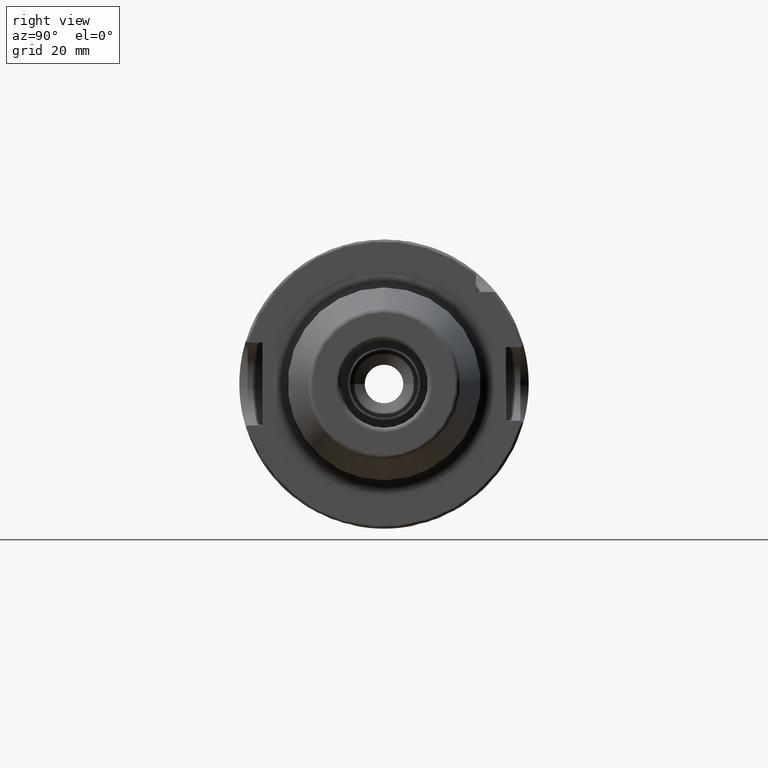
[diagram: clean part render]
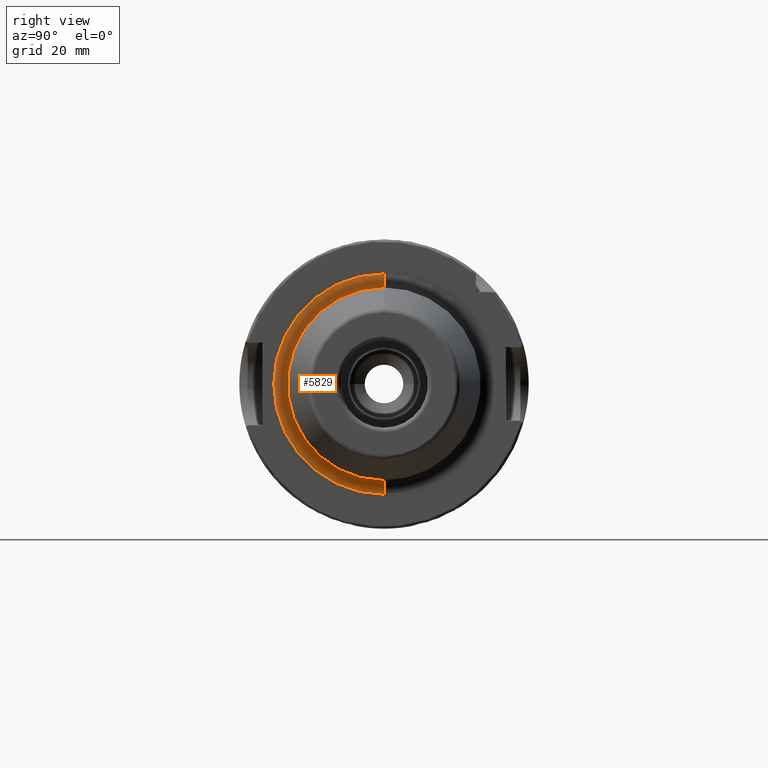
[diagram: same view with one face highlighted and labeled with its STEP entity id]
A machine part, right view. The second image highlights one B-rep face of the part: STEP entity #5829.
In plain terms, the highlighted toroidal blend (fillet) surface has major radius 24 mm and minor (blend) radius 3 mm.
Its self-contained STEP definition (entity closure, byte-faithful):
#667=CARTESIAN_POINT('',(2.6E1,0.E0,0.E0));
#668=DIRECTION('',(1.E0,0.E0,0.E0));
#669=DIRECTION('',(0.E0,0.E0,1.E0));
#670=AXIS2_PLACEMENT_3D('',#667,#668,#669);
#2465=CARTESIAN_POINT('',(2.9E1,0.E0,2.4E1));
#2466=DIRECTION('',(0.E0,1.E0,0.E0));
#2467=DIRECTION('',(0.E0,0.E0,-1.E0));
#2468=AXIS2_PLACEMENT_3D('',#2465,#2466,#2467);
#2470=CARTESIAN_POINT('',(2.9E1,0.E0,0.E0));
#2471=DIRECTION('',(-1.E0,0.E0,0.E0));
#2472=DIRECTION('',(0.E0,0.E0,-1.E0));
#2473=AXIS2_PLACEMENT_3D('',#2470,#2471,#2472);
#2475=CARTESIAN_POINT('',(2.9E1,0.E0,-2.4E1));
#2476=DIRECTION('',(0.E0,-1.E0,0.E0));
#2477=DIRECTION('',(0.E0,0.E0,1.E0));
#2478=AXIS2_PLACEMENT_3D('',#2475,#2476,#2477);
#2960=CARTESIAN_POINT('',(2.9E1,0.E0,-2.1E1));
#2961=VERTEX_POINT('',#2960);
#2982=CARTESIAN_POINT('',(2.9E1,0.E0,2.1E1));
#2983=VERTEX_POINT('',#2982);
#2984=CARTESIAN_POINT('',(2.6E1,0.E0,-2.4E1));
#2985=CARTESIAN_POINT('',(2.6E1,0.E0,2.4E1));
#2986=VERTEX_POINT('',#2984);
#2987=VERTEX_POINT('',#2985);
#5818=CARTESIAN_POINT('',(2.9E1,0.E0,0.E0));
#5819=DIRECTION('',(1.E0,0.E0,0.E0));
#5820=DIRECTION('',(0.E0,0.E0,1.E0));
#5821=AXIS2_PLACEMENT_3D('',#5818,#5819,#5820);
#5822=TOROIDAL_SURFACE('',#5821,2.4E1,3.E0);
#5823=ORIENTED_EDGE('',*,*,#3767,.F.);
#5824=ORIENTED_EDGE('',*,*,#3728,.F.);
#5825=ORIENTED_EDGE('',*,*,#3697,.F.);
#5826=ORIENTED_EDGE('',*,*,#3725,.T.);
#5827=EDGE_LOOP('',(#5823,#5824,#5825,#5826));
#5828=FACE_OUTER_BOUND('',#5827,.F.);
#5829=ADVANCED_FACE('',(#5828),#5822,.F.);
#671=CIRCLE('',#670,2.4E1);
#2469=CIRCLE('',#2468,3.E0);
#2474=CIRCLE('',#2473,2.1E1);
#2479=CIRCLE('',#2478,3.E0);
#3697=EDGE_CURVE('',#2961,#2983,#2474,.T.);
#3725=EDGE_CURVE('',#2961,#2986,#2479,.T.);
#3728=EDGE_CURVE('',#2983,#2987,#2469,.T.);
#3767=EDGE_CURVE('',#2987,#2986,#671,.T.);